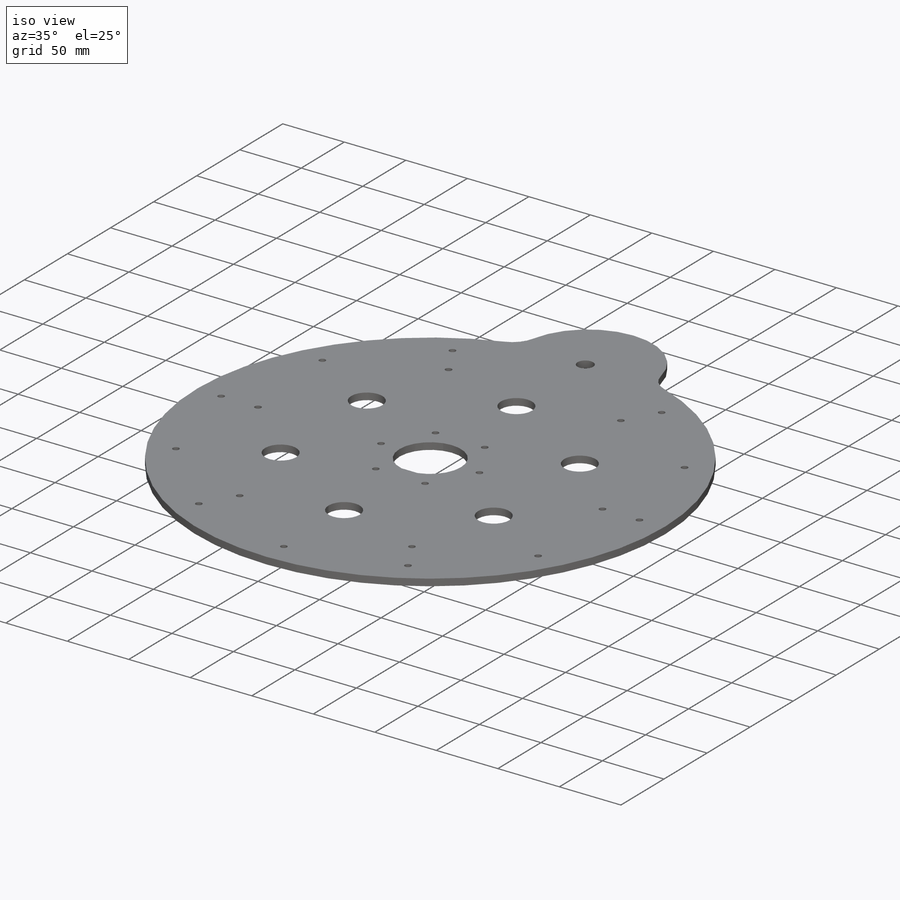
[diagram: iso view]
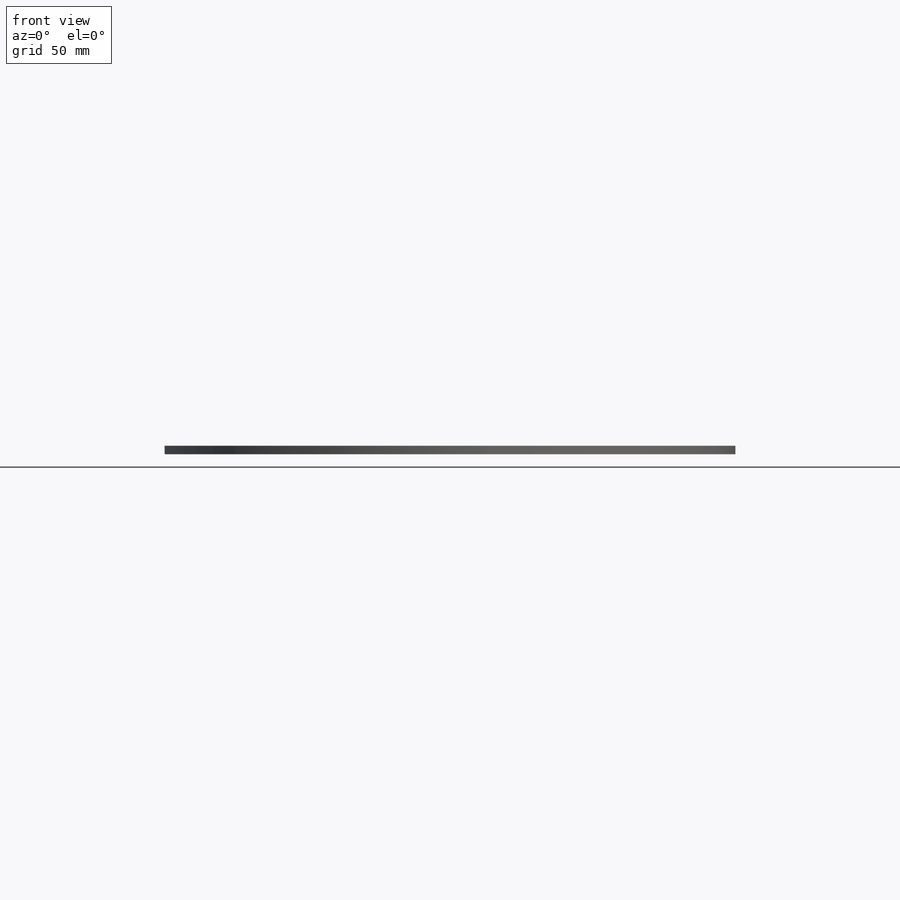
[diagram: front view]
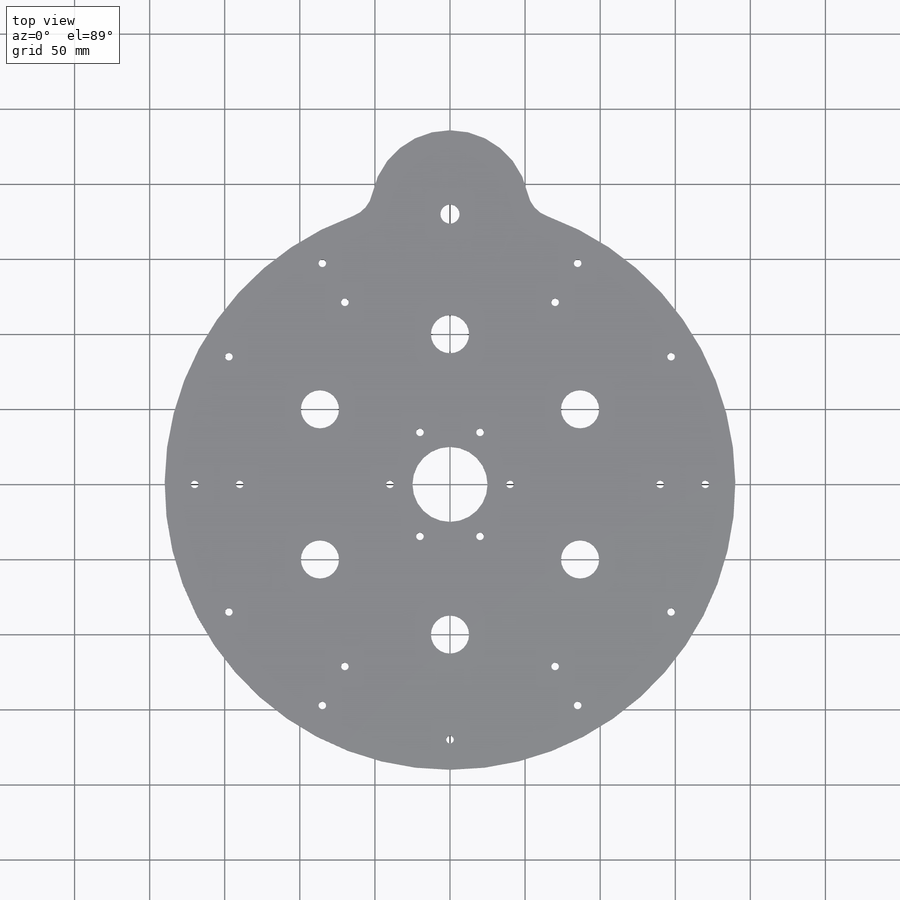
[diagram: top view]
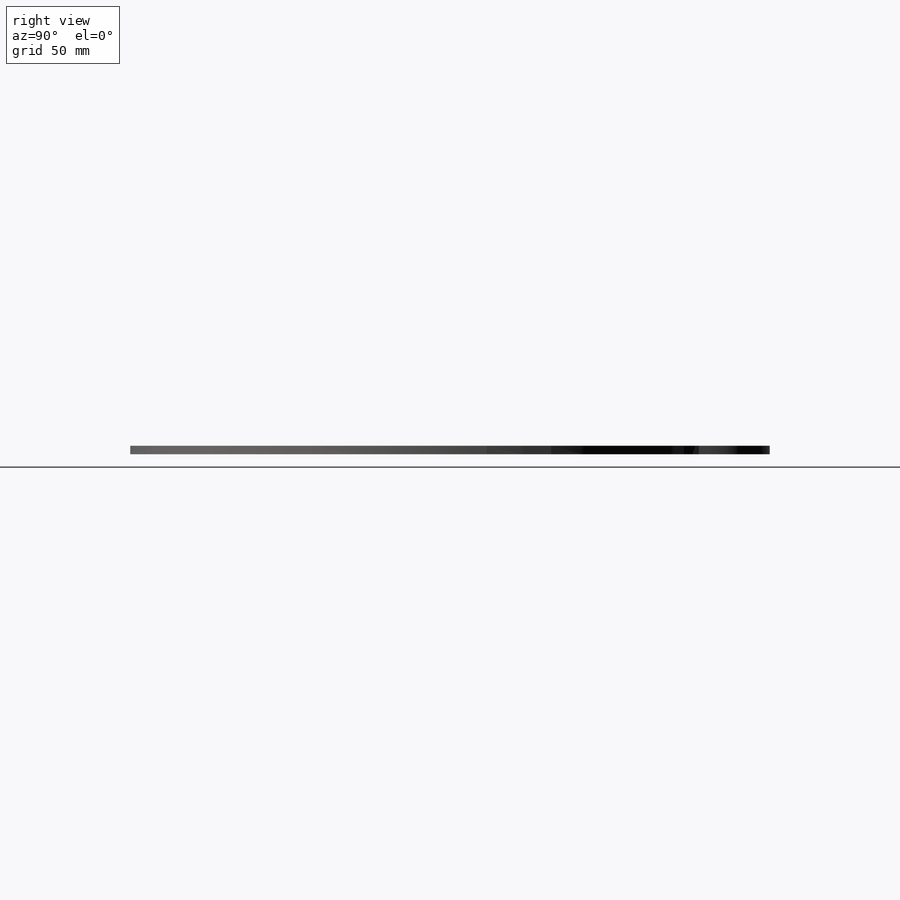
[diagram: right view]
SOLIDWORKS PART (.sldprt)
format: sldprt  version: not decoded by parser v0  size: 467,968 bytes
history: native  units: mm
features: sketch x6, hole x2, material x1, extrude x1, cut_extrude x1 (+13 scaffold rows collapsed)
feature tree (24):
  scaffold x13  (default folders/planes/origin — collapsed)
  material  "Material <not specified>"
  sketch  "Sketch1"  dims[c1.D1=380.0mm c1.D2=50.0mm c1.D3=20.0mm c2.D1=20.0mm c2.D3=20.0mm]
  extrude  "Boss-Extrude1"  Depth=5.6mm
  hole  "Ø5.0mm Dowel Hole2"  Diameter=5mm Depth=5.6mm
  sketch  "Sketch7"
  sketch  "Sketch6"  dims[hole-wizard template sketch: 60 standard entries collapsed; hole parameters kept: c18.Thru Hole Depth=5.6mm]
  hole  "Ø5.0mm Dowel Hole3"  Diameter=5mm Depth=5.6mm
  sketch  "Sketch9"
  sketch  "Sketch8"  dims[hole-wizard template sketch: 60 standard entries collapsed; hole parameters kept: c18.Thru Hole Depth=5.6mm]
  sketch  "Sketch10"  dims[D1=6.0]
  cut_extrude  "Cut-Extrude1"  Depth=20mm
decode coverage: 8 of 10 modeling features carry decoded parameters
note: ~ marks probable driven/reference dimensions
note: suppression state not decoded; provenance and decode notes live in map.json
